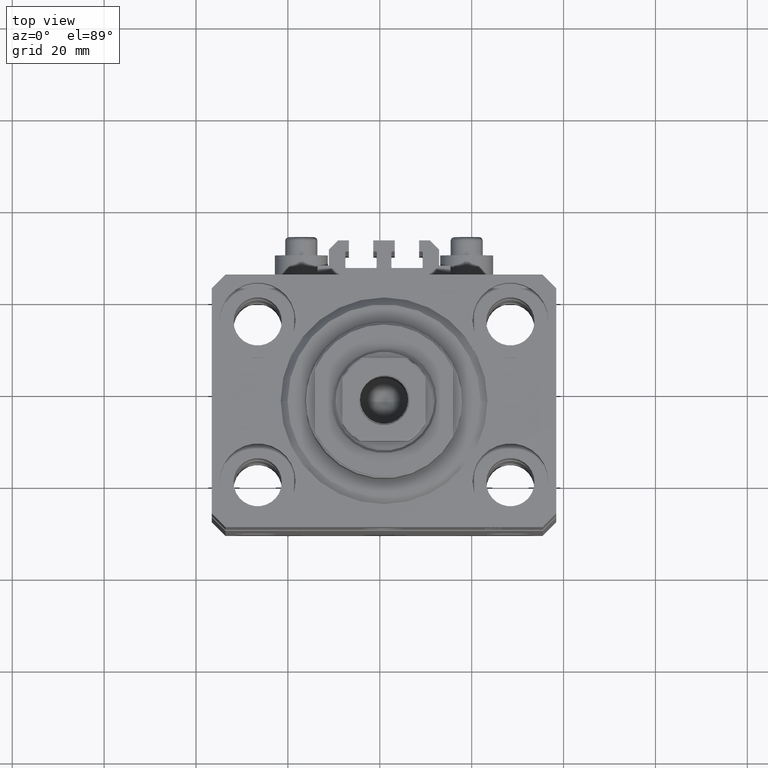
[diagram: clean part render]
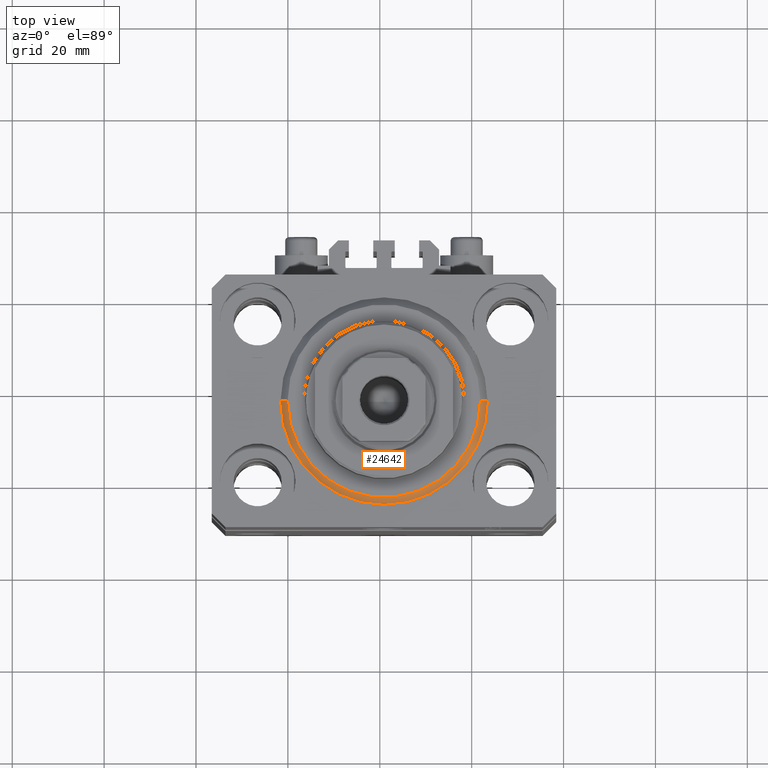
[diagram: same view with one face highlighted and labeled with its STEP entity id]
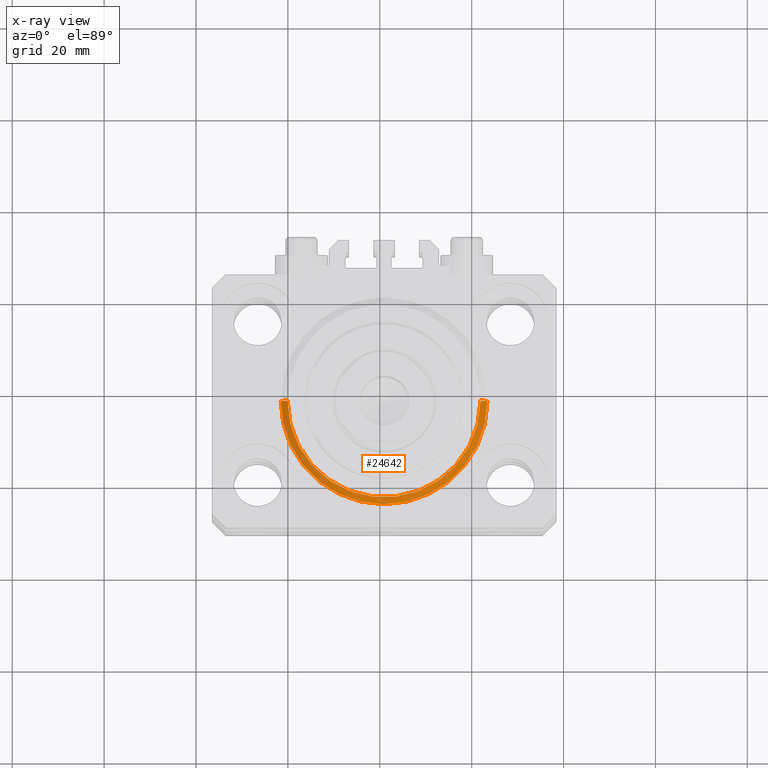
[diagram: x-ray of the same camera — body ghosted, the highlighted face saturated]
A machine part, top view. The second image highlights one B-rep face of the part: STEP entity #24642.
The next image is the same camera in x-ray: the body ghosted, the highlighted face saturated — about 0% of this face is hidden behind the body in this view.
In plain terms, the highlighted conical surface has half-angle 45 deg.
Its self-contained STEP definition (entity closure, byte-faithful):
#300 = CARTESIAN_POINT ( 'NONE',  ( -22.50000000000000355, 2.755455298081545172E-15, 1.500000000000001332 ) ) ;
#727 = DIRECTION ( 'NONE',  ( 1.000000000000000000, 0.000000000000000000, 0.000000000000000000 ) ) ;
#2065 = VECTOR ( 'NONE', #44844, 1000.000000000000114 ) ;
#4433 = CIRCLE ( 'NONE', #13722, 20.99999999999998934 ) ;
#5324 = CARTESIAN_POINT ( 'NONE',  ( 22.50000000000000355, 0.000000000000000000, 1.500000000000001332 ) ) ;
#5444 = EDGE_CURVE ( 'NONE', #14358, #45135, #35535, .T. ) ;
#5530 = DIRECTION ( 'NONE',  ( 1.000000000000000000, 0.000000000000000000, 0.000000000000000000 ) ) ;
#8157 = EDGE_CURVE ( 'NONE', #44807, #45135, #11877, .T. ) ;
#11877 = LINE ( 'NONE', #5324, #13198 ) ;
#13198 = VECTOR ( 'NONE', #20097, 1000.000000000000114 ) ;
#13722 = AXIS2_PLACEMENT_3D ( 'NONE', #15249, #22295, #727 ) ;
#14358 = VERTEX_POINT ( 'NONE', #14575 ) ;
#14575 = CARTESIAN_POINT ( 'NONE',  ( -22.50000000000000355, 0.000000000000000000, 1.500000000000001332 ) ) ;
#15249 = CARTESIAN_POINT ( 'NONE',  ( 0.000000000000000000, 0.000000000000000000, 0.000000000000000000 ) ) ;
#19053 = CONICAL_SURFACE ( 'NONE', #46139, 22.50000000000000355, 0.7853981633974517207 ) ;
#19401 = DIRECTION ( 'NONE',  ( 1.000000000000000000, 0.000000000000000000, 0.000000000000000000 ) ) ;
#20097 = DIRECTION ( 'NONE',  ( 0.7071067811865500152, 0.000000000000000000, 0.7071067811865451302 ) ) ;
#21637 = AXIS2_PLACEMENT_3D ( 'NONE', #41441, #30540, #19401 ) ;
#22295 = DIRECTION ( 'NONE',  ( -0.000000000000000000, -0.000000000000000000, -1.000000000000000000 ) ) ;
#24642 = ADVANCED_FACE ( 'NONE', ( #38715 ), #19053, .T. ) ;
#24754 = ORIENTED_EDGE ( 'NONE', *, *, #25185, .F. ) ;
#25185 = EDGE_CURVE ( 'NONE', #27845, #14358, #37115, .T. ) ;
#27845 = VERTEX_POINT ( 'NONE', #33130 ) ;
#29457 = CARTESIAN_POINT ( 'NONE',  ( 22.50000000000000355, 2.755455298081545172E-15, 1.500000000000001332 ) ) ;
#30104 = EDGE_CURVE ( 'NONE', #44807, #27845, #4433, .T. ) ;
#30540 = DIRECTION ( 'NONE',  ( -0.000000000000000000, -0.000000000000000000, 1.000000000000000000 ) ) ;
#31490 = CARTESIAN_POINT ( 'NONE',  ( 20.99999999999998934, 0.000000000000000000, 0.000000000000000000 ) ) ;
#32451 = ORIENTED_EDGE ( 'NONE', *, *, #30104, .F. ) ;
#33130 = CARTESIAN_POINT ( 'NONE',  ( -20.99999999999998934, 2.663606788145492628E-15, 0.000000000000000000 ) ) ;
#35535 = CIRCLE ( 'NONE', #21637, 22.50000000000000355 ) ;
#37115 = LINE ( 'NONE', #300, #2065 ) ;
#37605 = ORIENTED_EDGE ( 'NONE', *, *, #5444, .F. ) ;
#38715 = FACE_OUTER_BOUND ( 'NONE', #42093, .T. ) ;
#39280 = ORIENTED_EDGE ( 'NONE', *, *, #8157, .T. ) ;
#41441 = CARTESIAN_POINT ( 'NONE',  ( 0.000000000000000000, 0.000000000000000000, 1.500000000000001332 ) ) ;
#42093 = EDGE_LOOP ( 'NONE', ( #24754, #32451, #39280, #37605 ) ) ;
#44807 = VERTEX_POINT ( 'NONE', #31490 ) ;
#44844 = DIRECTION ( 'NONE',  ( -0.7071067811865500152, 8.659560562354963673E-17, 0.7071067811865451302 ) ) ;
#45135 = VERTEX_POINT ( 'NONE', #29457 ) ;
#46139 = AXIS2_PLACEMENT_3D ( 'NONE', #47112, #47351, #5530 ) ;
#47112 = CARTESIAN_POINT ( 'NONE',  ( 0.000000000000000000, 0.000000000000000000, 1.500000000000001332 ) ) ;
#47351 = DIRECTION ( 'NONE',  ( -0.000000000000000000, -0.000000000000000000, 1.000000000000000000 ) ) ;